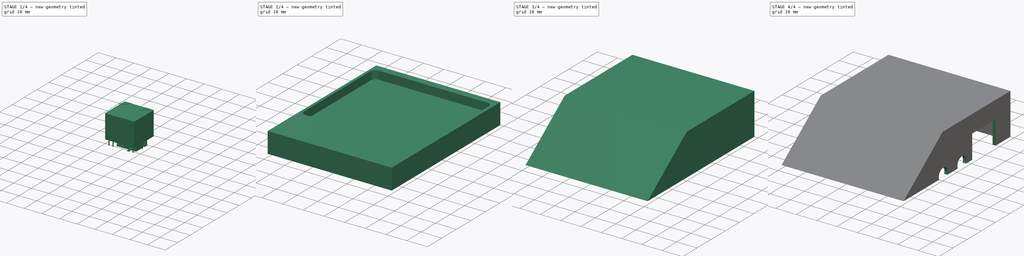
[diagram: build sequence overview — one tinted view per stage of 4, left to right]
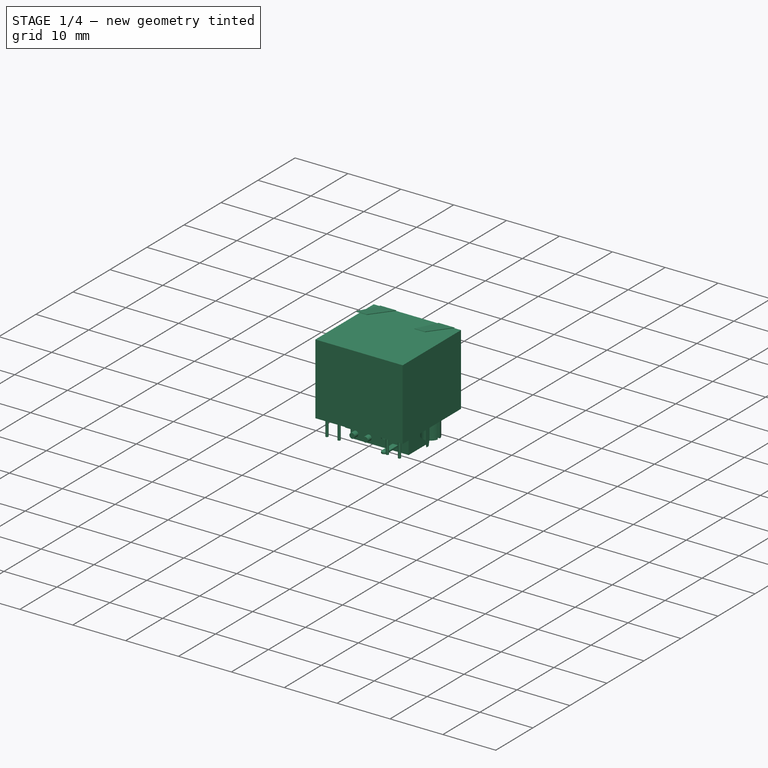
[diagram: stage 1 of 4 — iso view after this stage's code; geometry added in this stage tinted green]
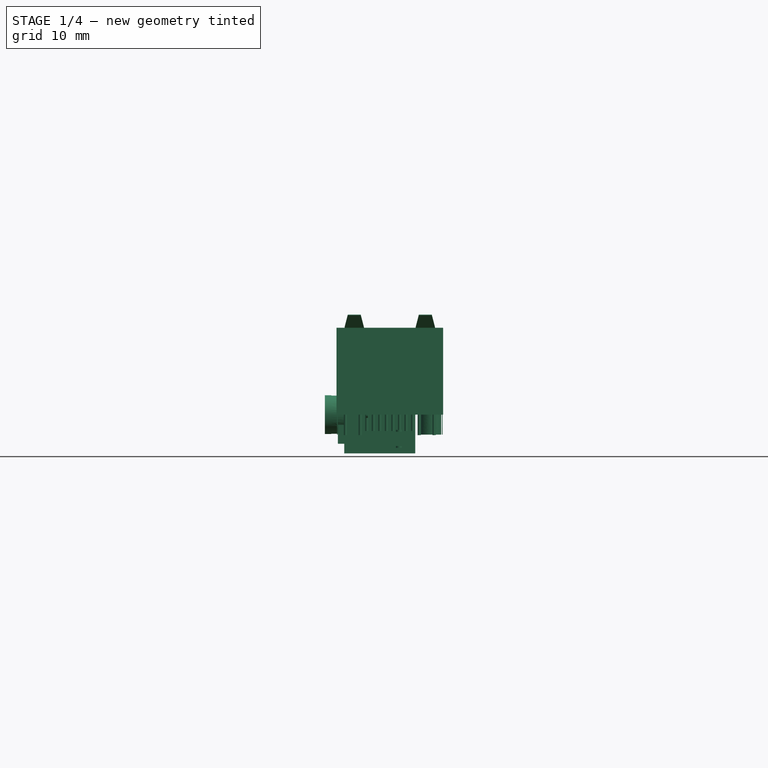
[diagram: stage 1 of 4 — front view after this stage's code; geometry added in this stage tinted green]
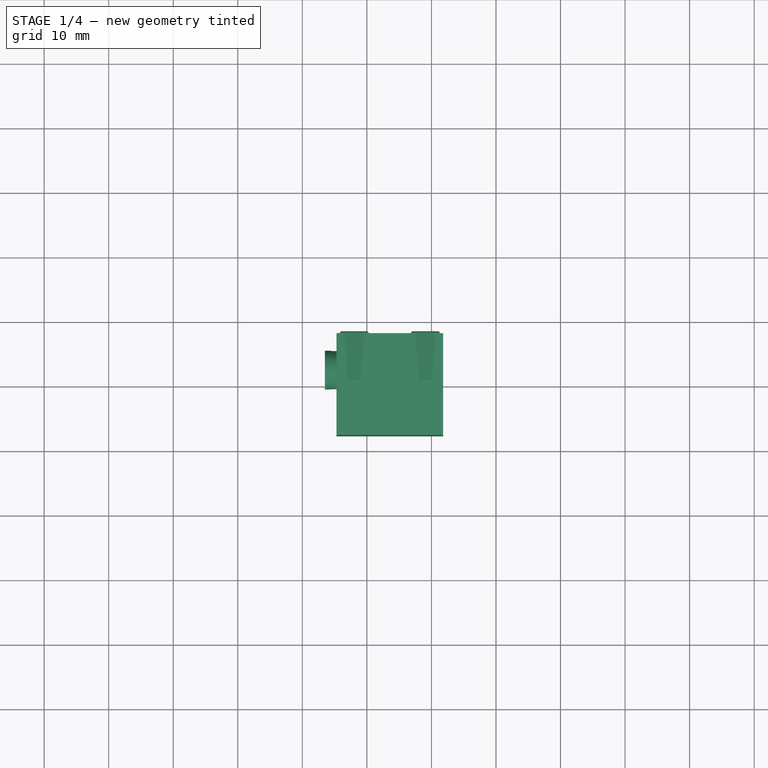
[diagram: stage 1 of 4 — top view after this stage's code; geometry added in this stage tinted green]
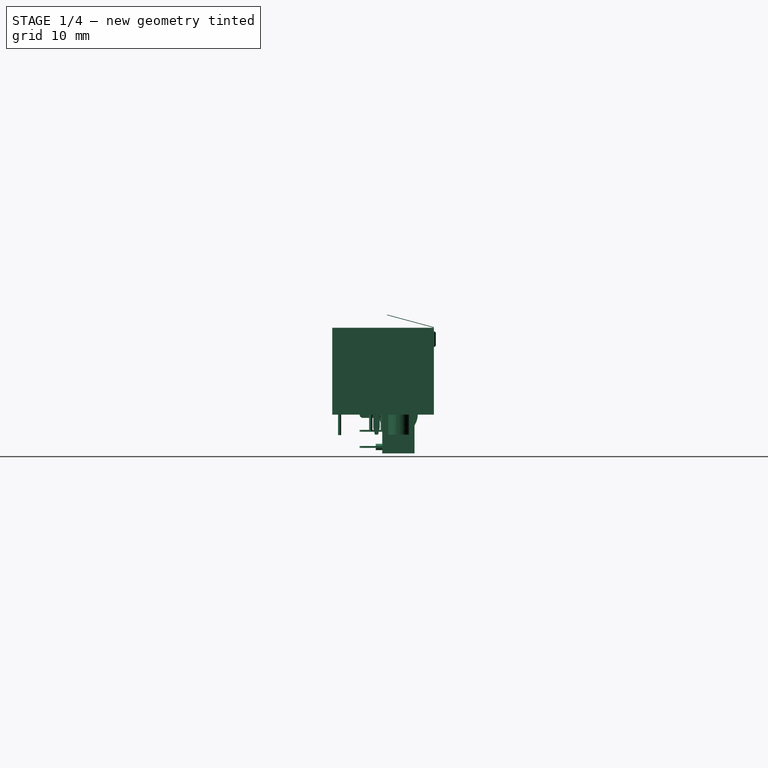
[diagram: stage 1 of 4 — right view after this stage's code; geometry added in this stage tinted green]
FCSTD DOCUMENT  (FreeCAD 0.19RUnknown)
Label: Mikadapter81X
License: All rights reserved
LicenseURL: http://en.wikipedia.org/wiki/All_rights_reserved
objects: Part::Feature×11, Sketcher::SketchObject×7, PartDesign::Pocket×5, PartDesign::SubShapeBinder×4, Part::Compound2×2, App::Link×2, PartDesign::Pad×2, PartDesign::Body×2, App::LinkGroup×1
note: 38 computed .brp shape members not serialized (recipe doc carries the construction recipe); baked Part::Feature solids carry a one-line shape summary decoded from their .brp

FEATURE [Part::Feature] Solid
  shape: bbox 17.86 x 16.05 x 16.64 mm, 151 faces (baked)
FEATURE [Part::Feature] Solid001
  shape: bbox 3 x 7.27 x 2.038 mm, 6 faces (baked)
FEATURE [Part::Feature] Solid002
  shape: bbox 3 x 7.27 x 2.038 mm, 6 faces (baked)
FEATURE [Part::Compound2] Compound  label="RJ45_Amphenol_RJHSE538X"
  Links = -> [Solid,Solid001,Solid002]
FEATURE [Part::Feature] Solid003
  shape: bbox 0.3 x 3.5 x 1 mm, 6 faces (baked)
FEATURE [Part::Feature] Solid004
  shape: bbox 1 x 3.5 x 0.3 mm, 6 faces (baked)
FEATURE [Part::Feature] Solid005
  shape: bbox 1 x 6 x 6 mm, 8 faces (baked)
FEATURE [Part::Feature] Solid006
  shape: bbox 13 x 6.45 x 12 mm, 34 faces (baked)
FEATURE [Part::Feature] Solid007
  shape: bbox 1 x 3.5 x 0.3 mm, 6 faces (baked)
FEATURE [Part::Feature] Solid008
  shape: bbox 1 x 3.5 x 0.3 mm, 6 faces (baked)
FEATURE [Part::Feature] Solid009
  shape: bbox 1 x 3.5 x 0.3 mm, 6 faces (baked)
FEATURE [Part::Compound2] Compound001  label="FC68131"
  Links = -> [Solid003,Solid004,Solid005,Solid006,Solid007,Solid008,Solid009]
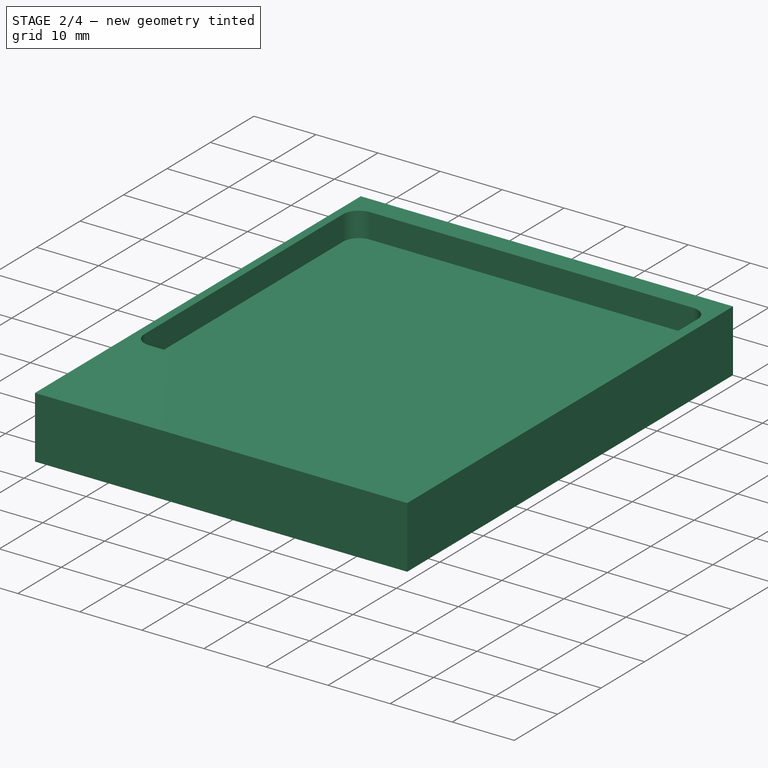
[diagram: stage 2 of 4 — iso view after this stage's code; geometry added in this stage tinted green]
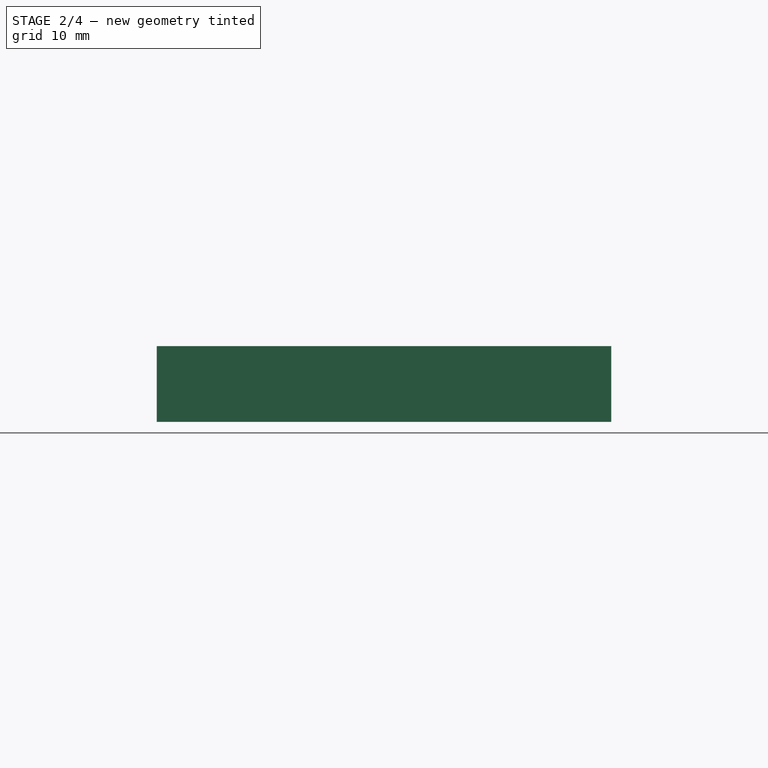
[diagram: stage 2 of 4 — front view after this stage's code; geometry added in this stage tinted green]
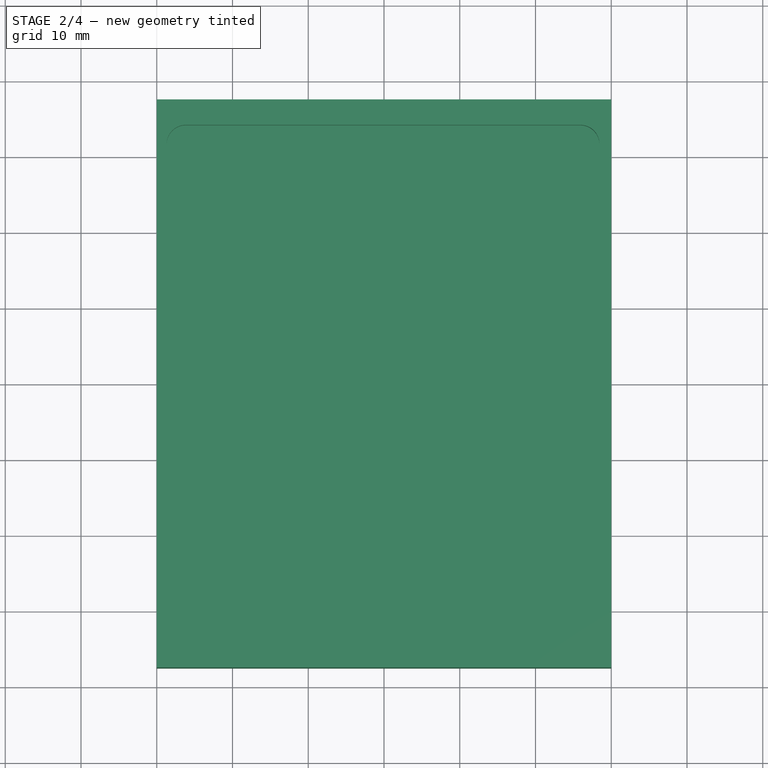
[diagram: stage 2 of 4 — top view after this stage's code; geometry added in this stage tinted green]
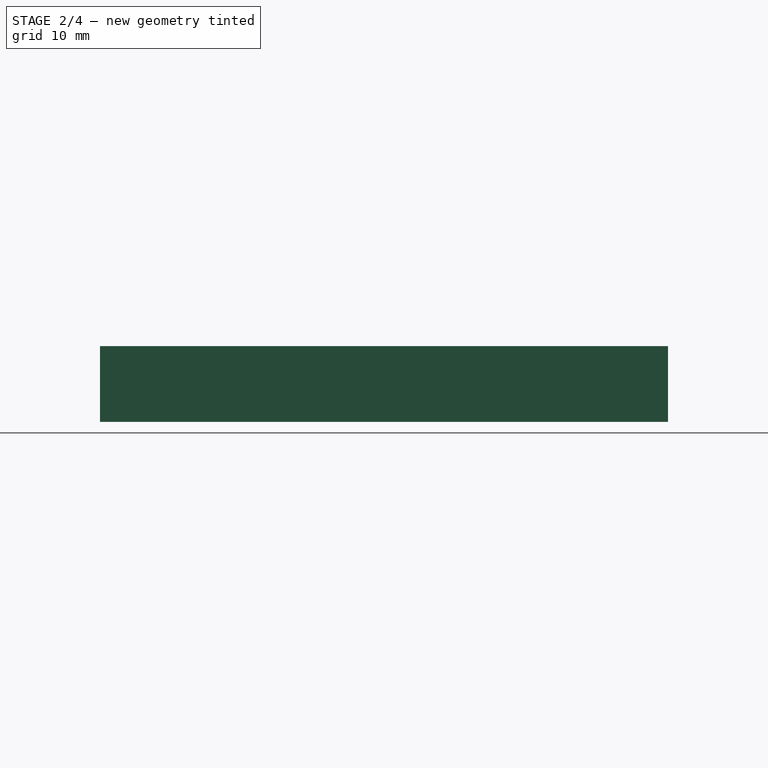
[diagram: stage 2 of 4 — right view after this stage's code; geometry added in this stage tinted green]
FEATURE [Part::Feature] Solid010  label="Mikadapter PCB"
  shape: bbox 57.15 x 50.8 x 1.6 mm, 76 faces (baked)
FEATURE [App::Link] Link  label="RJ45_Amphenol_RJHSE538X001"
  ElementCount = 2
  LinkedObject = -> Compound
  PlacementList = 2 placements: [(163.115,-58.658,1.65),(123.12,-65.548,1.65)]
  ScaleList = (2) [(1,1,1),(1,1,1)]
  ShowElement = false
FEATURE [App::Link] Link001  label="FC68132"
  ElementCount = 3
  LinkedObject = -> Compound001
  PlacementList = 3 placements: [(166.45,-77.771,2.15),(166.37,-90.805,2.65),(119.38,-90.805,1.65)]
  ScaleList = (3) [(1,1,1),(1,1,1),(1,1,1)]
  ShowElement = false
FEATURE [App::LinkGroup] LinkGroup  label="Mikadapter 1"
  ElementList = -> [Link,Link001,Solid010]
  LinkMode = 0
  Placement = pos=(-143,81.1218,6.54553) rot=(-1,0,0;0rad)
FEATURE [PartDesign::SubShapeBinder] Binder
  BindMode = 0
  ClaimChildren = false
  Context = -> Body [Binder.]
  Fuse = false
  MakeFace = true
  PartialLoad = false
  Relative = true
  Support = -> [LinkGroup]
  _Version = 2
FEATURE [Sketcher::SketchObject] Sketch
  ExternalGeometry = -> [Binder]
  FullyConstrained = true
  MapMode = 5
  Support = -> [XY_Plane]
  sketch-geometry (4):
    g0: LineSegment StartX=-30 StartY=37.5 StartZ=0 EndX=30 EndY=37.5 EndZ=0
    g1: LineSegment StartX=30 StartY=37.5 StartZ=0 EndX=30 EndY=-37.5 EndZ=0
    g2: LineSegment StartX=30 StartY=-37.5 StartZ=0 EndX=-30 EndY=-37.5 EndZ=0
    g3: LineSegment StartX=-30 StartY=-37.5 StartZ=0 EndX=-30 EndY=37.5 EndZ=0
  constraints (11):
    c: Coincident(g0,g1)
    c: Coincident(g1,g2)
    c: Coincident(g2,g3)
    c: Coincident(g3,g0)
    c: Horizontal(g0)
    c: Horizontal(g2)
    c: Vertical(g1)
    c: Vertical(g3)
    c: Symmetric(g1,g0,g-1)
    c: Distance(g0) = 60
    c: Distance(g3) = 75
FEATURE [PartDesign::Pad] Pad
  Direction = (1,1,1)
  Length = 10
  Length2 = 100
  Profile = -> Sketch
  Type = 0
FEATURE [Sketcher::SketchObject] Sketch001
  ExternalGeometry = -> [Binder]
  FullyConstrained = true
  MapMode = 5
  Placement = pos=(0,0,10) rot=(0,0,1;0rad)
  Support = -> [Pad]
  sketch-geometry (8):
    g0: LineSegment StartX=-26.16 StartY=34.1318 StartZ=0 EndX=25.91 EndY=34.1318 EndZ=0
    g1: LineSegment StartX=-28.7 StartY=31.5918 StartZ=0 EndX=-28.7 EndY=-14.1282 EndZ=0
    g2: LineSegment StartX=-26.16 StartY=-16.6682 StartZ=0 EndX=25.275 EndY=-16.6682 EndZ=0
    g3: LineSegment StartX=28.45 StartY=31.5918 StartZ=0 EndX=28.45 EndY=-13.4932 EndZ=0
    g4: ArcOfCircle CenterX=-26.16 CenterY=31.5918 CenterZ=0 NormalX=0 NormalY=0 NormalZ=1 AngleXU=0 Radius=2.53997 StartAngle=1.57078 EndAngle=3.1416
    g5: ArcOfCircle CenterX=25.91 CenterY=31.5918 CenterZ=0 NormalX=0 NormalY=0 NormalZ=1 AngleXU=0 Radius=2.53999 StartAngle=6.28318 EndAngle=7.85399
    g6: ArcOfCircle CenterX=25.275 CenterY=-13.4932 CenterZ=0 NormalX=0 NormalY=0 NormalZ=1 AngleXU=0 Radius=3.17501 StartAngle=4.71239 EndAngle=6.28318
    g7: ArcOfCircle CenterX=-26.16 CenterY=-14.1282 CenterZ=0 NormalX=0 NormalY=0 NormalZ=1 AngleXU=0 Radius=2.53999 StartAngle=3.14159 EndAngle=4.71239
  constraints (20):
    c: Coincident(g0,g-3)
    c: Coincident(g0,g-3)
    c: Coincident(g1,g-5)
    c: Coincident(g-5,g1)
    c: Coincident(g2,g-7)
    c: Coincident(g2,g-7)
    c: Coincident(g3,g-9)
    c: Coincident(g3,g-9)
    c: Coincident(g4,g-4)
    c: Coincident(g4,g1)
    c: Coincident(g4,g0)
    c: Coincident(g5,g-10)
    c: Coincident(g5,g0)
    c: Coincident(g5,g3)
    c: Coincident(g6,g-8)
    c: Coincident(g6,g2)
    c: Coincident(g6,g3)
    c: Coincident(g7,g-6)
    c: Coincident(g7,g1)
    c: Coincident(g7,g2)
FEATURE [PartDesign::Pocket] Pocket
  BaseFeature = -> Pad
  Length = 4
  Length2 = 100
  Profile = -> Sketch001
  Type = 0
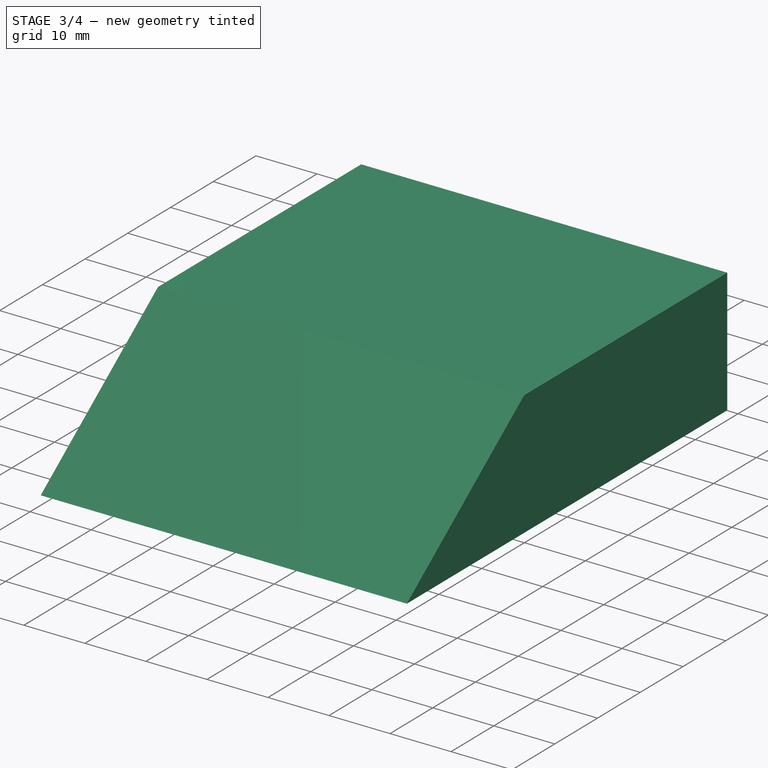
[diagram: stage 3 of 4 — iso view after this stage's code; geometry added in this stage tinted green]
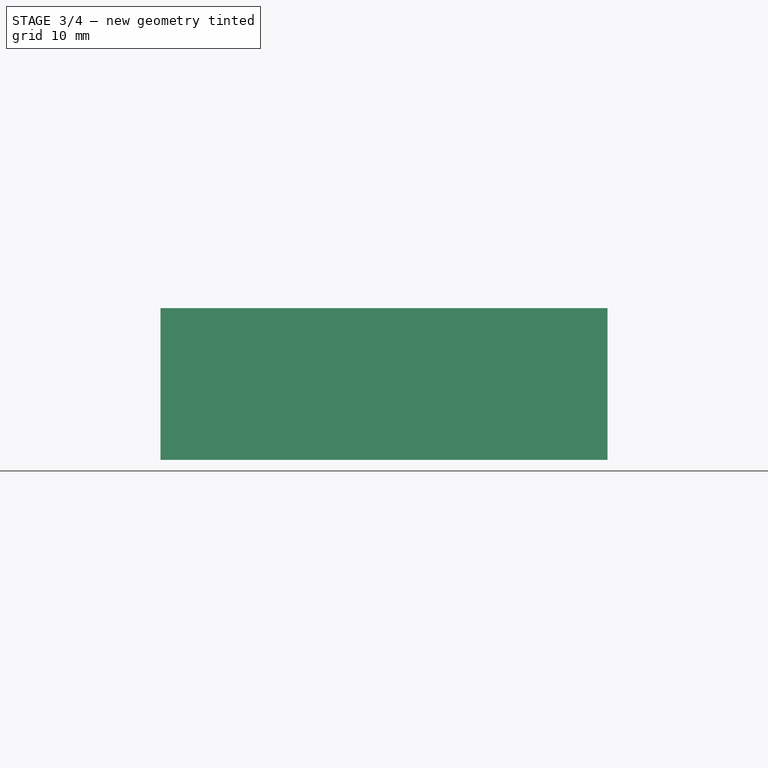
[diagram: stage 3 of 4 — front view after this stage's code; geometry added in this stage tinted green]
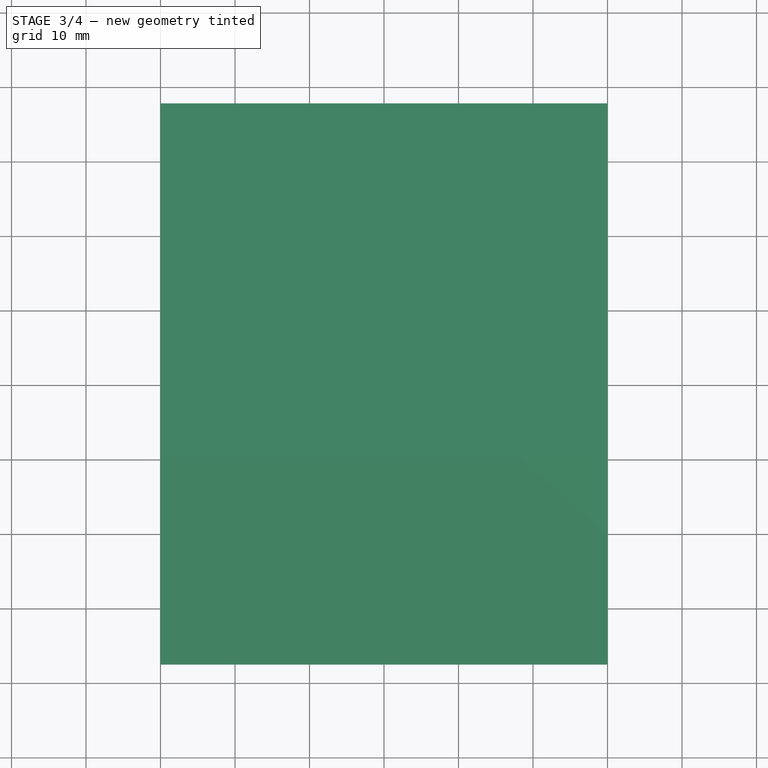
[diagram: stage 3 of 4 — top view after this stage's code; geometry added in this stage tinted green]
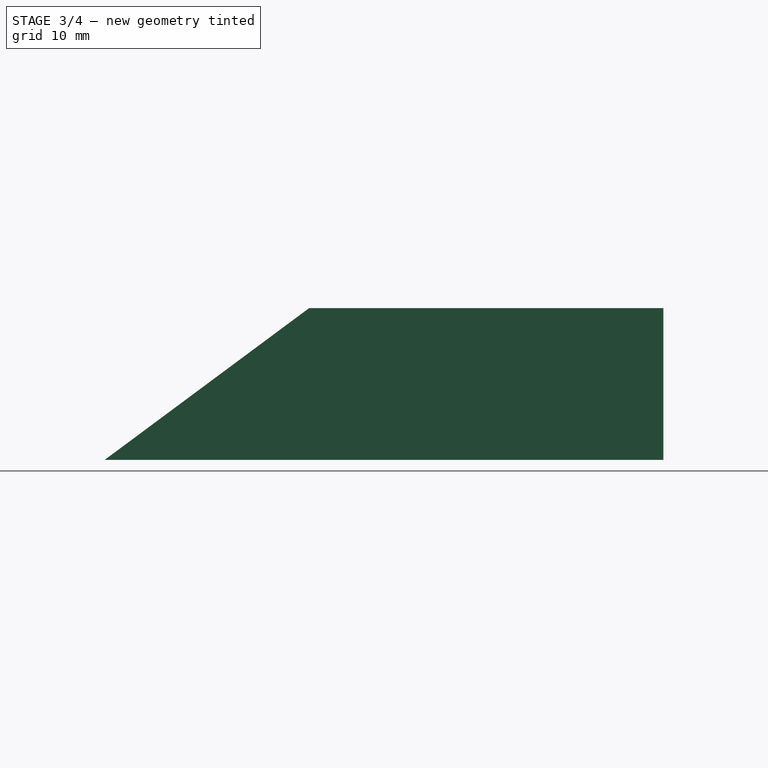
[diagram: stage 3 of 4 — right view after this stage's code; geometry added in this stage tinted green]
FEATURE [Sketcher::SketchObject] Sketch002
  ExternalGeometry = -> [Binder,Pocket]
  FullyConstrained = false
  MapMode = 5
  Placement = pos=(30,0,0) rot=(0.57735,0.57735,0.57735;2.0944rad)
  Support = -> [Pocket]
  sketch-geometry (6):
    g0: LineSegment StartX=10.6588 StartY=21.6555 StartZ=0 EndX=27.1688 EndY=21.6555 EndZ=0
    g1: LineSegment StartX=27.1688 StartY=21.6555 StartZ=0 EndX=27.1688 EndY=8.19554 EndZ=0
    g2: LineSegment StartX=27.1688 StartY=8.19554 StartZ=0 EndX=10.6588 EndY=8.19554 EndZ=0
    g3: LineSegment StartX=10.6588 StartY=8.19554 StartZ=0 EndX=10.6588 EndY=21.6555 EndZ=0
    g4: Circle CenterX=3.3622 CenterY=11.2293 CenterZ=0 NormalX=0 NormalY=0 NormalZ=1 AngleXU=0 Radius=3.00378
    g5: Circle CenterX=-9.8878 CenterY=11.2293 CenterZ=0 NormalX=0 NormalY=0 NormalZ=1 AngleXU=0 Radius=3.00378
  constraints (13):
    c: Coincident(g0,g1)
    c: Coincident(g1,g2)
    c: Coincident(g2,g3)
    c: Coincident(g3,g0)
    c: Horizontal(g0)
    c: Horizontal(g2)
    c: Vertical(g1)
    c: Vertical(g3)
    c: Coincident(g0,g-9)
    c: Coincident(g1,g-11)
    c: DistanceY(g4,g5) = 0
    c: DistanceX(g5,g4) = 13.25
    c: Equal(g4,g5)
FEATURE [PartDesign::Pocket] Pocket001
  BaseFeature = -> Pocket
  Length = 5
  Length2 = 100
  Profile = -> Sketch002
  Type = 0
FEATURE [PartDesign::SubShapeBinder] Binder001
  BindMode = 0
  ClaimChildren = false
  Context = -> Body [Binder001.]
  Fuse = false
  MakeFace = true
  PartialLoad = false
  Relative = true
  Support = -> [Binder]
  _Version = 2
FEATURE [PartDesign::Body] Body
  Group = -> [Sketch,Pad,Binder,Sketch001,Pocket,Sketch002,Pocket001,Binder001]
  Origin = -> Origin
  Tip = -> Pocket001
FEATURE [PartDesign::SubShapeBinder] Binder003
  BindMode = 0
  ClaimChildren = false
  Fuse = false
  MakeFace = true
  PartialLoad = false
  Relative = true
  Support = -> [Body[Pocket001.]]
  _Version = 2
FEATURE [Sketcher::SketchObject] Sketch008
  ExternalGeometry = -> [Binder003]
  FullyConstrained = false
  MapMode = 5
  Placement = pos=(0,0,0) rot=(0.57735,0.57735,0.57735;2.0944rad)
  Support = -> [YZ_Plane001]
  sketch-geometry (4):
    g0: LineSegment StartX=-37.5 StartY=10 StartZ=0 EndX=37.5 EndY=10 EndZ=0
    g1: LineSegment StartX=37.5 StartY=10 StartZ=0 EndX=37.5 EndY=30.3769 EndZ=0
    g2: LineSegment StartX=-37.5 StartY=10 StartZ=0 EndX=-10.046 EndY=30.3769 EndZ=0
    g3: LineSegment StartX=-10.046 StartY=30.3769 StartZ=0 EndX=37.5 EndY=30.3769 EndZ=0
  constraints (7):
    c: Coincident(g0,g-3)
    c: Vertical(g1)
    c: Coincident(g2,g0)
    c: Coincident(g3,g2)
    c: Coincident(g3,g1)
    c: Horizontal(g3)
    c: Coincident(g1,g0)
FEATURE [PartDesign::Pad] Pad001
  Direction = (1,1,1)
  Length = 60
  Length2 = 100
  Midplane = true
  Placement = pos=(0,0,0) rot=(0.57735,0.57735,0.57735;2.0944rad)
  Profile = -> Sketch008
  Type = 0
FEATURE [PartDesign::SubShapeBinder] Binder004
  BindMode = 0
  ClaimChildren = false
  Context = -> Body001 [Binder004.]
  Fuse = false
  MakeFace = true
  PartialLoad = false
  Relative = true
  Support = -> [LinkGroup]
  _Version = 2
FEATURE [Sketcher::SketchObject] Sketch009
  ExternalGeometry = -> [Binder004]
  FullyConstrained = false
  MapMode = 5
  Placement = pos=(-2.8e-15,1.6e-15,10) rot=(0.707107,0.707107,0;3.14159rad)
  Support = -> [Pad001]
  sketch-geometry (8):
    g0: LineSegment StartX=-16.6682 StartY=25.275 StartZ=0 EndX=-16.6682 EndY=-26.16 EndZ=0
    g1: LineSegment StartX=-14.1282 StartY=-28.7 StartZ=0 EndX=31.5918 EndY=-28.7 EndZ=0
    g2: LineSegment StartX=34.1318 StartY=-26.16 StartZ=0 EndX=34.1318 EndY=25.91 EndZ=0
    g3: ArcOfCircle CenterX=-13.4932 CenterY=25.275 CenterZ=0 NormalX=0 NormalY=0 NormalZ=1 AngleXU=0 Radius=3.17501 StartAngle=1.5708 EndAngle=3.14159
    g4: ArcOfCircle CenterX=31.5918 CenterY=25.91 CenterZ=0 NormalX=0 NormalY=0 NormalZ=1 AngleXU=0 Radius=2.53999 StartAngle=6.28318 EndAngle=7.85399
    g5: ArcOfCircle CenterX=-14.1282 CenterY=-26.16 CenterZ=0 NormalX=0 NormalY=0 NormalZ=1 AngleXU=0 Radius=2.53999 StartAngle=3.14159 EndAngle=4.71239
    g6: ArcOfCircle CenterX=31.5918 CenterY=-26.16 CenterZ=0 NormalX=0 NormalY=0 NormalZ=1 AngleXU=0 Radius=2.53997 StartAngle=4.71238 EndAngle=6.28319
    g7: LineSegment StartX=-13.4932 StartY=28.45 StartZ=0 EndX=31.5918 EndY=28.45 EndZ=0
  constraints (15):
    c: Coincident(g1,g-4)
    c: Coincident(g1,g-4)
    c: Coincident(g3,g-9)
    c: Coincident(g3,g0)
    c: Coincident(g4,g-8)
    c: Coincident(g4,g2)
    c: Coincident(g4,g-10)
    c: Coincident(g5,g-6)
    c: Coincident(g5,g0)
    c: Coincident(g5,g1)
    c: Coincident(g6,g-5)
    c: Coincident(g6,g1)
    c: Coincident(g6,g2)
    c: Coincident(g7,g3)
    c: Coincident(g7,g4)
FEATURE [PartDesign::Pocket] Pocket002
  BaseFeature = -> Pad001
  Length = 15
  Length2 = 100
  Placement = pos=(0,0,0) rot=(0.57735,0.57735,0.57735;2.0944rad)
  Profile = -> Sketch009
  Type = 0
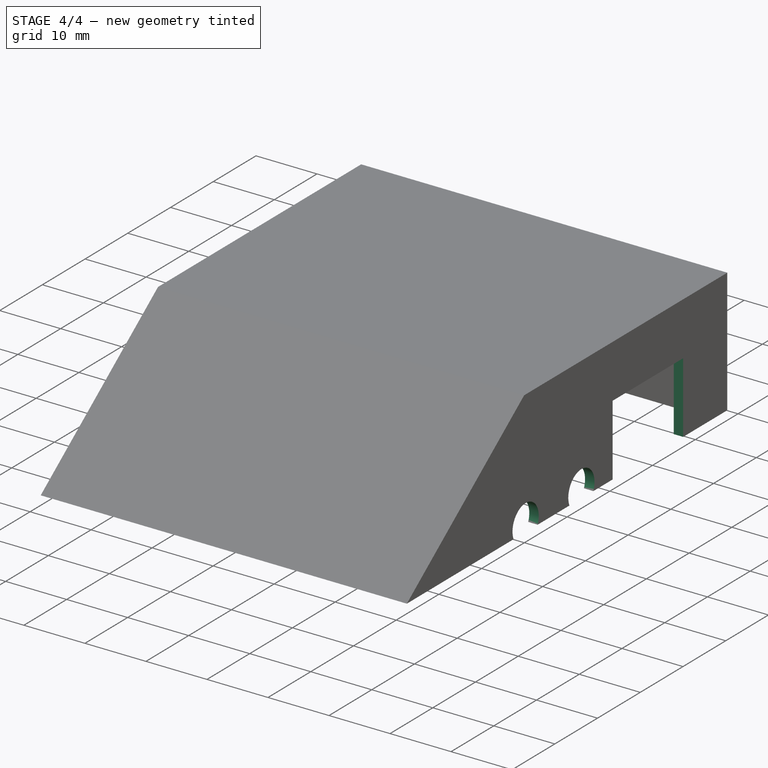
[diagram: stage 4 of 4 — iso view after this stage's code; geometry added in this stage tinted green]
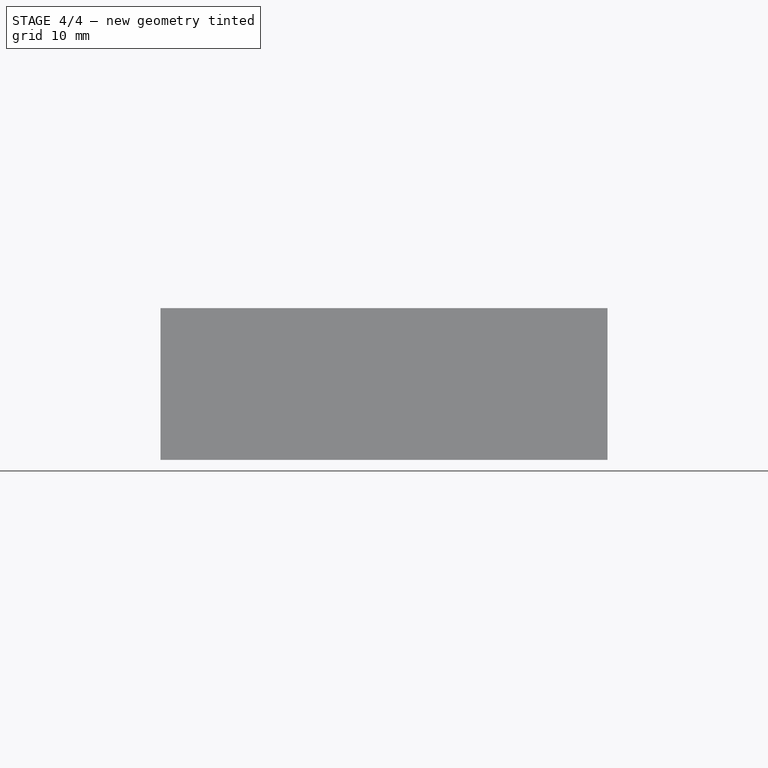
[diagram: stage 4 of 4 — front view after this stage's code; geometry added in this stage tinted green]
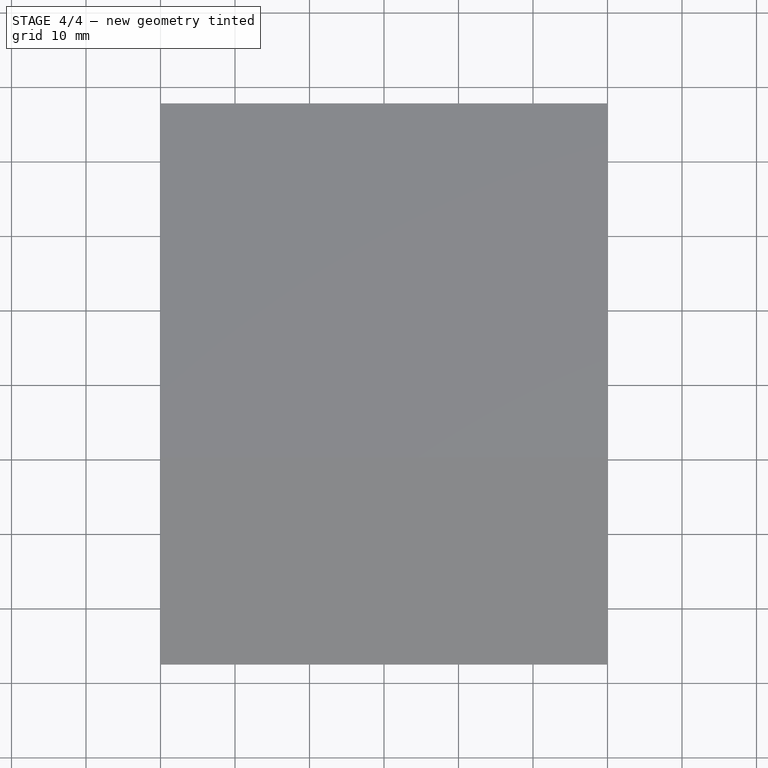
[diagram: stage 4 of 4 — top view after this stage's code; geometry added in this stage tinted green]
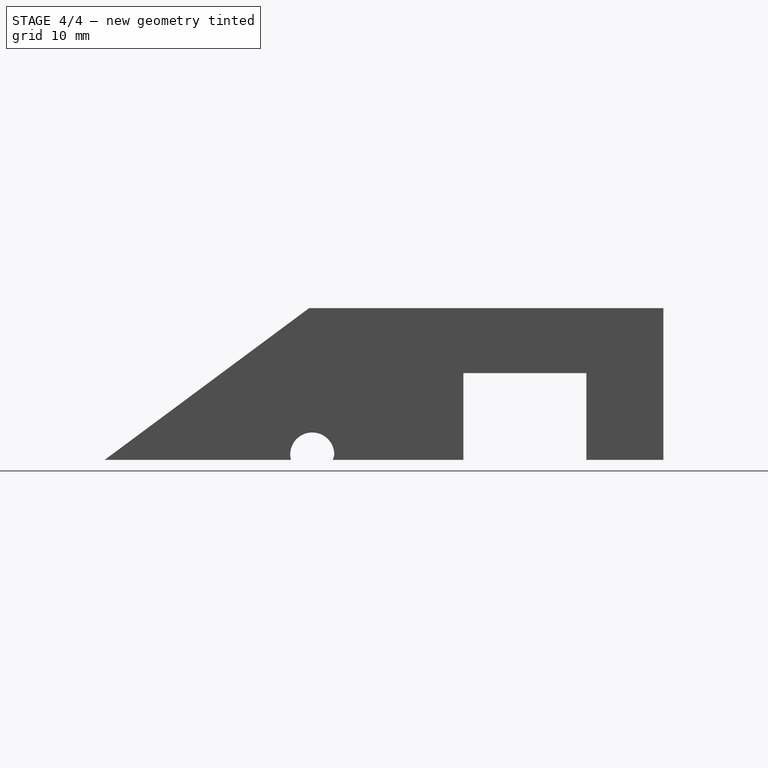
[diagram: stage 4 of 4 — right view after this stage's code; geometry added in this stage tinted green]
FEATURE [Sketcher::SketchObject] Sketch010
  ExternalGeometry = -> [Binder004]
  FullyConstrained = false
  MapMode = 5
  Placement = pos=(-30,2e-14,-1e-14) rot=(-0.57735,-0.57735,0.57735;2.0944rad)
  Support = -> [Pocket002]
  sketch-geometry (5):
    g0: LineSegment StartX=10.6588 StartY=-8.19554 StartZ=0 EndX=27.3788 EndY=-8.19554 EndZ=0
    g1: LineSegment StartX=27.3788 StartY=-8.19554 StartZ=0 EndX=27.3788 EndY=-21.6555 EndZ=0
    g2: LineSegment StartX=27.3788 StartY=-21.6555 StartZ=0 EndX=10.6588 EndY=-21.6555 EndZ=0
    g3: LineSegment StartX=10.6588 StartY=-21.6555 StartZ=0 EndX=10.6588 EndY=-8.19554 EndZ=0
    g4: Circle CenterX=-9.63407 CenterY=-10.7296 CenterZ=0 NormalX=0 NormalY=0 NormalZ=1 AngleXU=0 Radius=2.95108
  constraints (11):
    c: Coincident(g0,g1)
    c: Coincident(g1,g2)
    c: Coincident(g2,g3)
    c: Coincident(g3,g0)
    c: Horizontal(g0)
    c: Horizontal(g2)
    c: Vertical(g1)
    c: Vertical(g3)
    c: Coincident(g0,g-5)
    c: Coincident(g1,g-7)
    c: PointOnObject(g-4,g4)
FEATURE [PartDesign::Pocket] Pocket003
  BaseFeature = -> Pocket002
  Length = 5
  Length2 = 100
  Placement = pos=(0,0,0) rot=(0.57735,0.57735,0.57735;2.0944rad)
  Profile = -> Sketch010
  Type = 0
FEATURE [Sketcher::SketchObject] Sketch011
  ExternalGeometry = -> [Binder004]
  FullyConstrained = false
  MapMode = 5
  Placement = pos=(30,-2.66e-14,1.33e-14) rot=(0.57735,0.57735,0.57735;2.0944rad)
  Support = -> [Pocket003]
  sketch-geometry (6):
    g0: Circle CenterX=3.35639 CenterY=11.2599 CenterZ=0 NormalX=0 NormalY=0 NormalZ=1 AngleXU=0 Radius=3.06858
    g1: Circle CenterX=-9.69989 CenterY=11.2211 CenterZ=0 NormalX=0 NormalY=0 NormalZ=1 AngleXU=0 Radius=3.06858
    g2: LineSegment StartX=10.6588 StartY=21.6555 StartZ=0 EndX=27.1688 EndY=21.6555 EndZ=0
    g3: LineSegment StartX=27.1688 StartY=21.6555 StartZ=0 EndX=27.1688 EndY=8.19554 EndZ=0
    g4: LineSegment StartX=27.1688 StartY=8.19554 StartZ=0 EndX=10.6588 EndY=8.19554 EndZ=0
    g5: LineSegment StartX=10.6588 StartY=8.19554 StartZ=0 EndX=10.6588 EndY=21.6555 EndZ=0
  constraints (11):
    c: Equal(g0,g1)
    c: Coincident(g2,g3)
    c: Coincident(g3,g4)
    c: Coincident(g4,g5)
    c: Coincident(g5,g2)
    c: Horizontal(g2)
    c: Horizontal(g4)
    c: Vertical(g3)
    c: Vertical(g5)
    c: Coincident(g2,g-3)
    c: Coincident(g3,g-6)
FEATURE [PartDesign::Pocket] Pocket004
  BaseFeature = -> Pocket003
  Length = 5
  Length2 = 100
  Placement = pos=(0,0,0) rot=(0.57735,0.57735,0.57735;2.0944rad)
  Profile = -> Sketch011
  Type = 0
FEATURE [PartDesign::Body] Body001
  Group = -> [Sketch008,Binder003,Pad001,Sketch009,Binder004,Pocket002,Sketch010,Pocket003,Sketch011,Pocket004]
  Origin = -> Origin001
  Tip = -> Pocket004
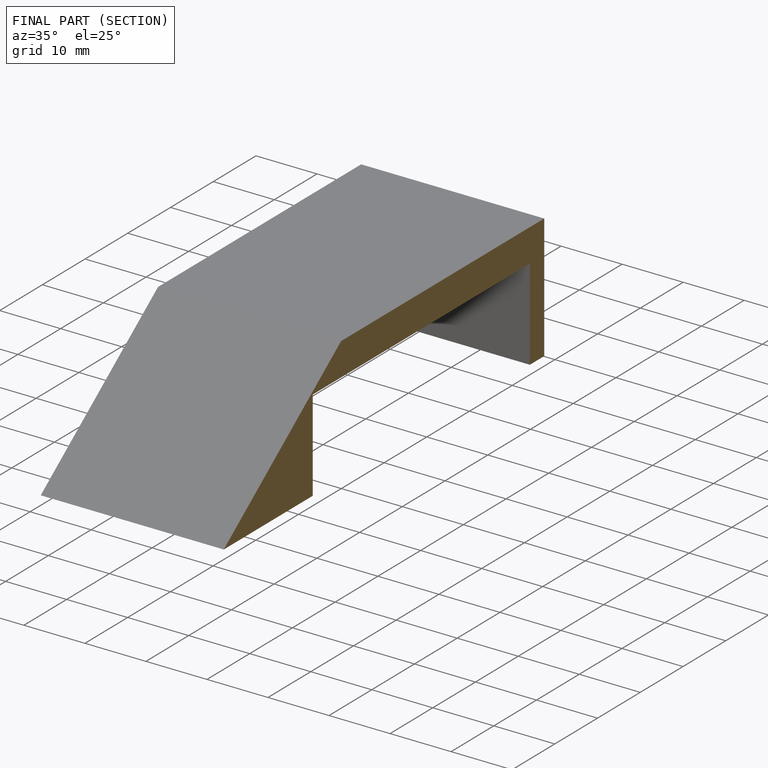
[diagram: finished part — half-section view (interior)]
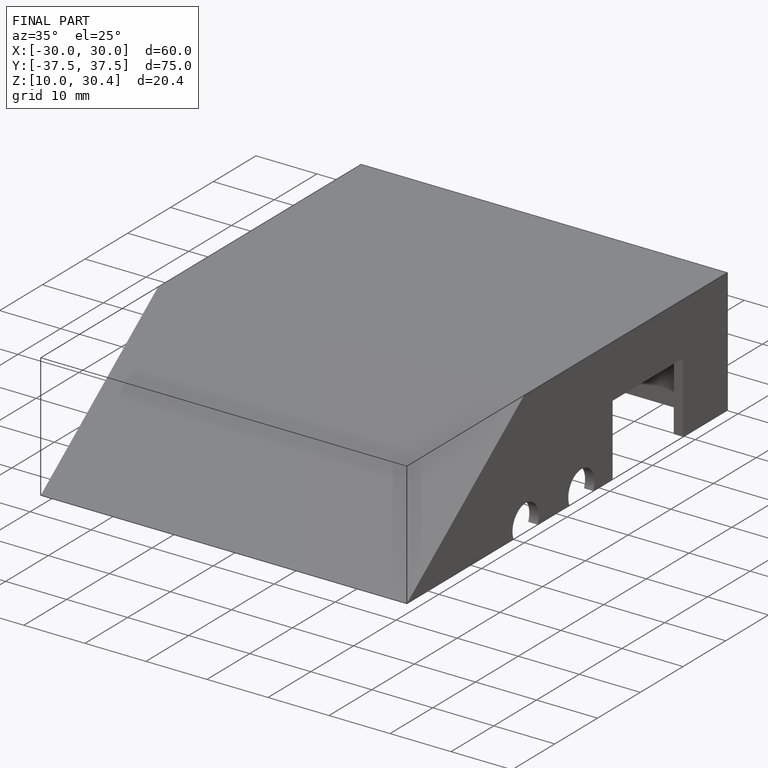
[diagram: finished part — iso view with bounding-box wireframe]
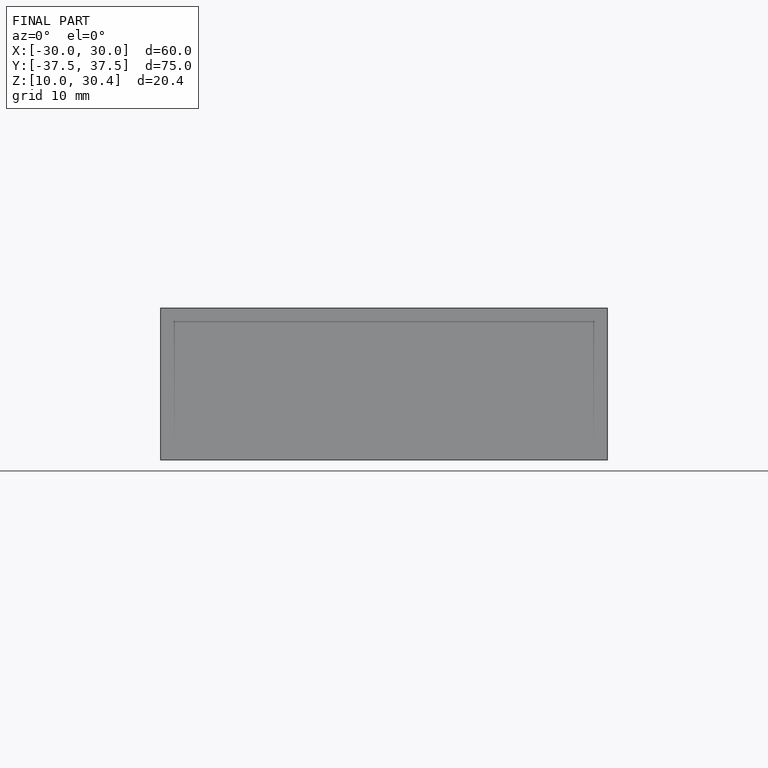
[diagram: finished part — front view with bounding-box wireframe]
